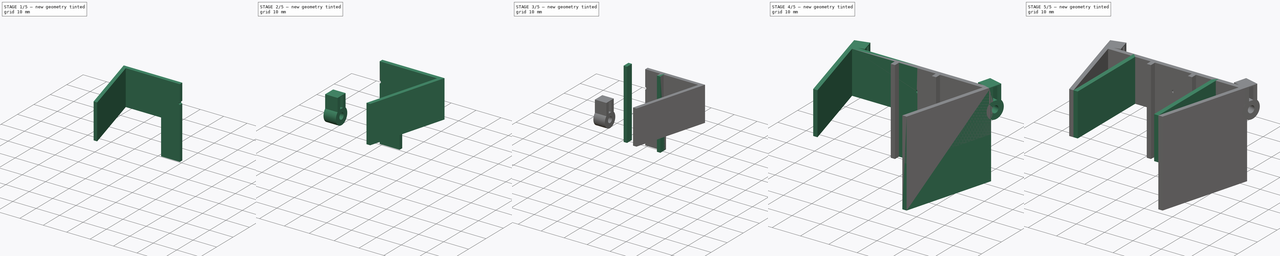
[diagram: build sequence overview — one tinted view per stage of 5, left to right]
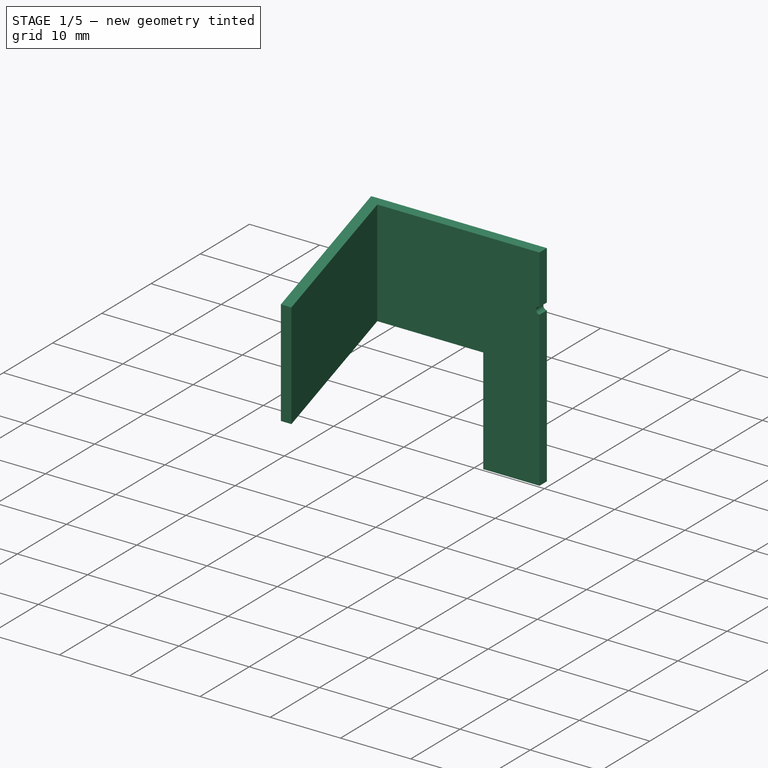
[diagram: stage 1 of 5 — iso view after this stage's code; geometry added in this stage tinted green]
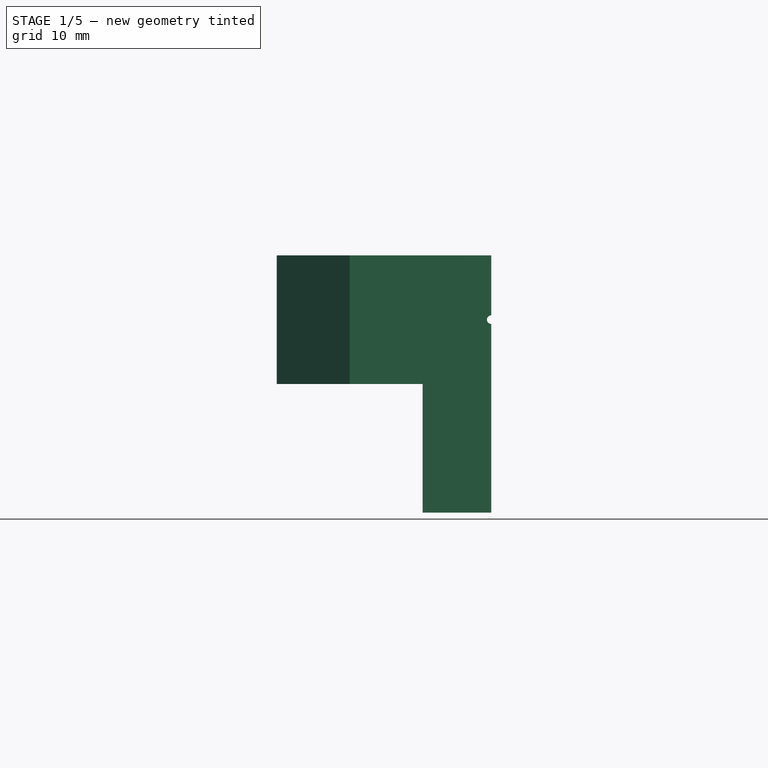
[diagram: stage 1 of 5 — front view after this stage's code; geometry added in this stage tinted green]
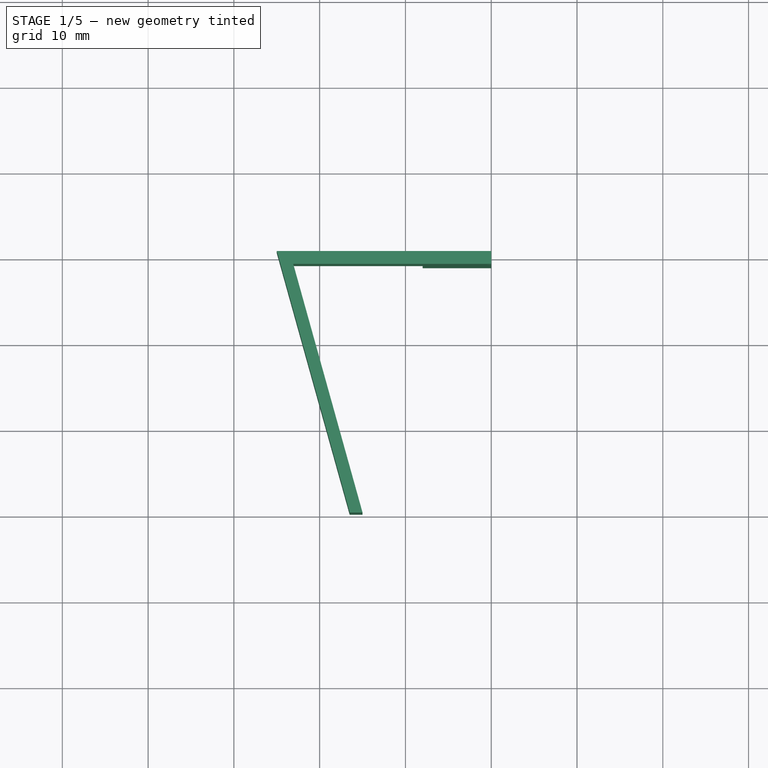
[diagram: stage 1 of 5 — top view after this stage's code; geometry added in this stage tinted green]
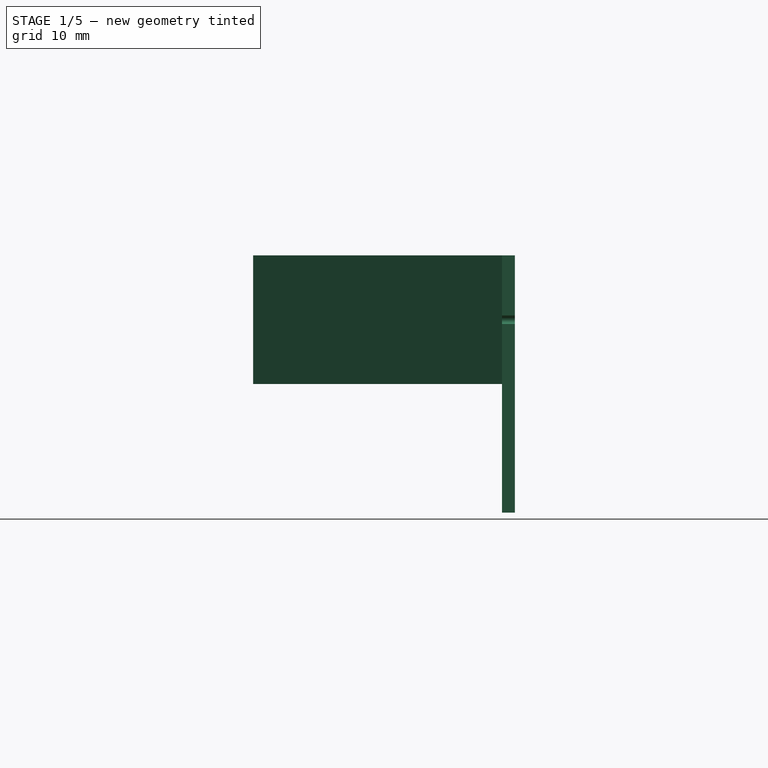
[diagram: stage 1 of 5 — right view after this stage's code; geometry added in this stage tinted green]
FCSTD DOCUMENT  (FreeCAD 0.19R24291 (Git))
Label: pedal
License: All rights reserved
LicenseURL: http://en.wikipedia.org/wiki/All_rights_reserved
objects: Sketcher::SketchObject×6, Part::Extrusion×6, PartDesign::FeatureBase×4, PartDesign::Body×4, Part::Cut×2, Part::Mirroring×2, Spreadsheet::Sheet×1, Part::Compound×1
note: 25 computed .brp shape members not serialized (recipe doc carries the construction recipe); baked Part::Feature solids carry a one-line shape summary decoded from their .brp

FEATURE [Sketcher::SketchObject] Sketch003
  FullyConstrained = true
  sketch-geometry (6):
    g0: LineSegment StartX=-15 StartY=0 StartZ=0 EndX=-23.082 EndY=29 EndZ=0
    g1: LineSegment StartX=-23.082 StartY=29 StartZ=0 EndX=0 EndY=29 EndZ=0
    g2: LineSegment StartX=0 StartY=29 StartZ=0 EndX=0 EndY=30.5 EndZ=0
    g3: LineSegment StartX=0 StartY=30.5 StartZ=0 EndX=-25 EndY=30.5 EndZ=0
    g4: LineSegment StartX=-25 StartY=30.5 StartZ=0 EndX=-16.5 EndY=0 EndZ=0
    g5: LineSegment StartX=-16.5 StartY=0 StartZ=0 EndX=-15 EndY=0 EndZ=0
  constraints (18):
    c: PointOnObject(g0,g-1)
    c: Coincident(g1,g0)
    c: Horizontal(g1)
    c: Coincident(g2,g1)
    c: PointOnObject(g2,g-2)
    c: Vertical(g2)
    c: Coincident(g3,g2)
    c: Horizontal(g3)
    c: Coincident(g4,g3)
    c: Coincident(g5,g4)
    c: Coincident(g5,g0)
    c: Horizontal(g5)
    c: DistanceY(g1) = 29
    c: DistanceY(g2,g2) = 1.5
    c: DistanceX(g5,g5) = 1.5
    c: DistanceX(g0) = -15
    c: Parallel(g0,g4)
    c: DistanceX(g3) = -25
FEATURE [Part::Extrusion] Extrude003
  Base = -> Sketch003
  Dir = (0,0,1)
  DirMode = 2
  FaceMakerClass = Part::FaceMakerBullseye
  LengthFwd = 15
  LengthRev = 15
  Solid = true
  Symmetric = false
FEATURE [PartDesign::Body] Body002
  Group = -> [Clone002]
  Origin = -> Origin002
  Placement = pos=(25.4,32,0) rot=(0,0,1;2.87979rad)
  Tip = -> Clone002
FEATURE [Sketcher::SketchObject] Sketch005
  FullyConstrained = false
  Placement = pos=(0,31,0) rot=(0,0.707107,0.707107;3.14159rad)
  sketch-geometry (5):
    g0: LineSegment StartX=26 StartY=0 StartZ=0 EndX=8 EndY=0 EndZ=0
    g1: LineSegment StartX=8 StartY=0 StartZ=0 EndX=8 EndY=-16 EndZ=0
    g2: LineSegment StartX=8 StartY=-16 StartZ=0 EndX=26 EndY=-16 EndZ=0
    g3: LineSegment StartX=26 StartY=-16 StartZ=0 EndX=26 EndY=0 EndZ=0
    g4: Circle CenterX=0 CenterY=7.5 CenterZ=0 NormalX=0 NormalY=0 NormalZ=1 AngleXU=0 Radius=0.5
  constraints (14):
    c: Coincident(g0,g1)
    c: Coincident(g1,g2)
    c: Coincident(g2,g3)
    c: Coincident(g3,g0)
    c: Horizontal(g0)
    c: Horizontal(g2)
    c: Vertical(g1)
    c: Vertical(g3)
    c: PointOnObject(g0,g-1)
    c: DistanceY(g1) = -16
    c: DistanceX(g0) = 8
    c: PointOnObject(g4,g-2)
    c: DistanceY(g4) = 7.5
    c: Radius(g4) = 0.5
FEATURE [Part::Extrusion] Extrude005
  Base = -> Sketch005
  Dir = (0,1,-2e-16)
  DirMode = 2
  FaceMakerClass = Part::FaceMakerBullseye
  LengthFwd = 0
  LengthRev = 32
  Solid = true
  Symmetric = false
FEATURE [Part::Cut] Cut001
  Base = -> Extrude003
  Tool = -> Extrude005
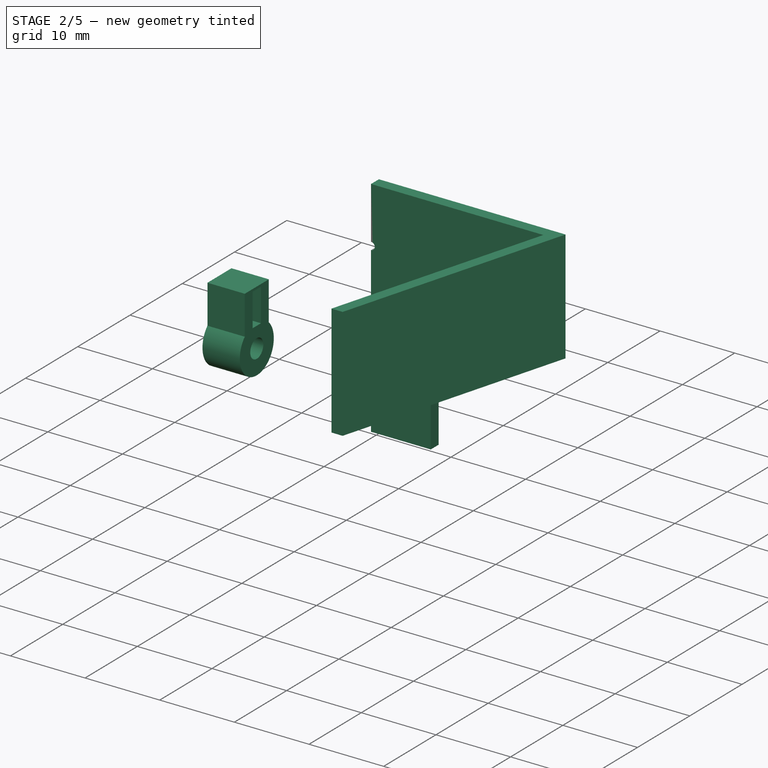
[diagram: stage 2 of 5 — iso view after this stage's code; geometry added in this stage tinted green]
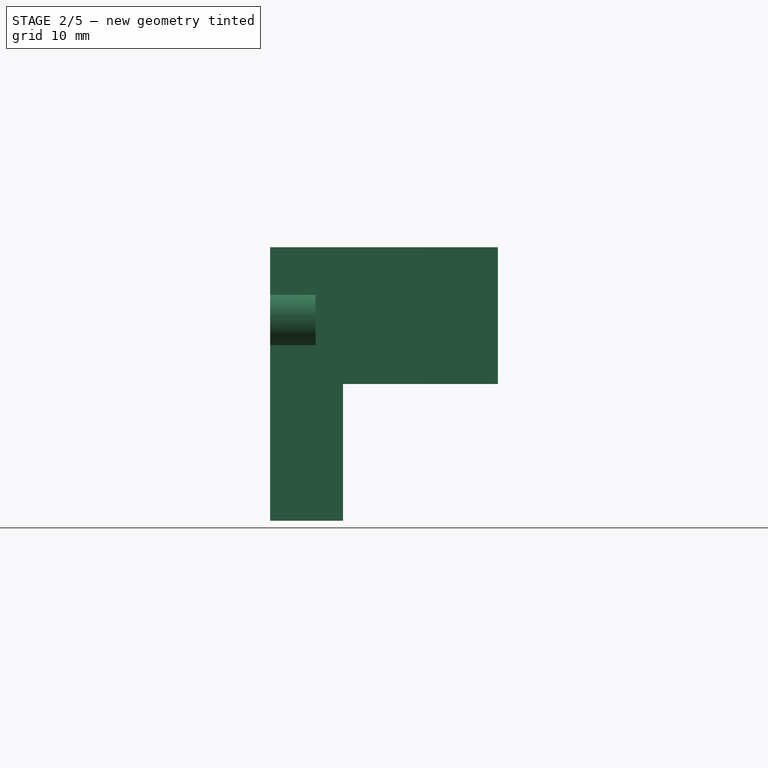
[diagram: stage 2 of 5 — front view after this stage's code; geometry added in this stage tinted green]
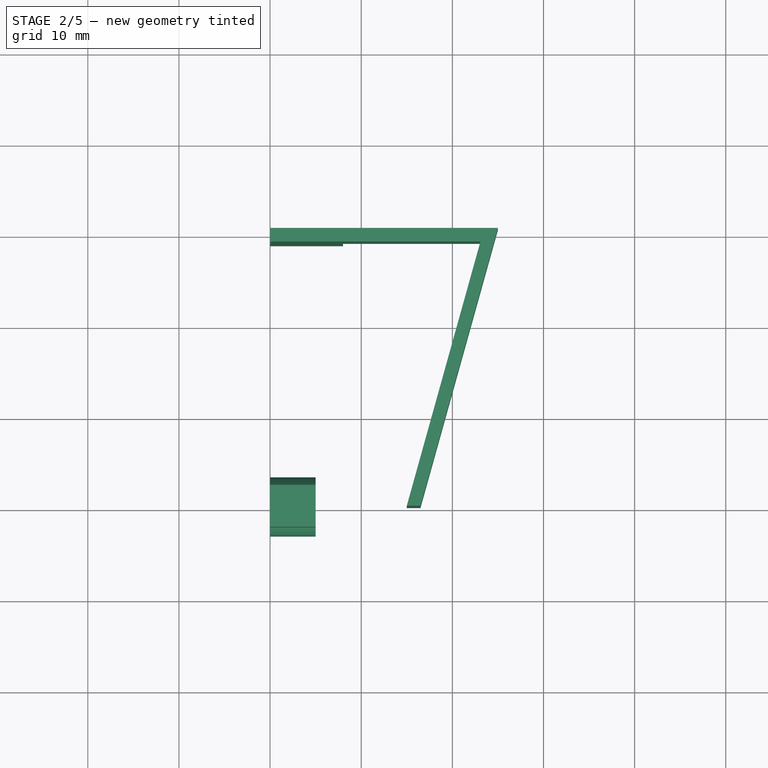
[diagram: stage 2 of 5 — top view after this stage's code; geometry added in this stage tinted green]
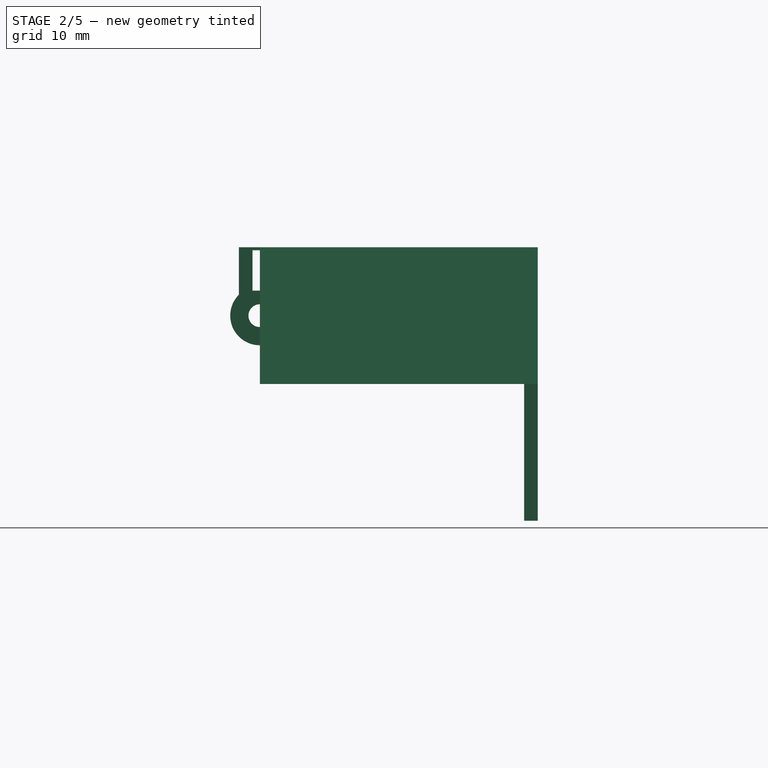
[diagram: stage 2 of 5 — right view after this stage's code; geometry added in this stage tinted green]
FEATURE [Spreadsheet::Sheet] Spreadsheet
  cells = A1=m2.6_r1; B1(m2_6_r1)=1.25; A2=m2.6_r2; B2(m2_6_r2)=1.5; A3=m2.6_r3; B3(m2_6_r3)=2.6
FEATURE [Sketcher::SketchObject] Sketch004
  FullyConstrained = true
  Placement = pos=(0,0,0) rot=(0.57735,0.57735,0.57735;2.0944rad)
  expr: Constraints[18] = Spreadsheet.m2_6_r1 + 1.5
  expr: Constraints[7] = Spreadsheet.m2_6_r1 + 2
  expr: Constraints[6] = Spreadsheet.m2_6_r1
  sketch-geometry (9):
    g0: Circle CenterX=0 CenterY=0 CenterZ=0 NormalX=0 NormalY=0 NormalZ=1 AngleXU=0 Radius=1.25
    g1: ArcOfCircle CenterX=0 CenterY=0 CenterZ=0 NormalX=0 NormalY=0 NormalZ=1 AngleXU=0 Radius=3.25 StartAngle=5.49779 EndAngle=10.2102
    g2: LineSegment StartX=-2.2981 StartY=-2.2981 StartZ=0 EndX=-2.2981 EndY=-7.5 EndZ=0
    g3: LineSegment StartX=2.2981 StartY=-7.5 StartZ=0 EndX=2.2981 EndY=-2.2981 EndZ=0
    g4: LineSegment StartX=2.2981 StartY=-7.5 StartZ=0 EndX=-2.2981 EndY=-7.5 EndZ=0
    g5: LineSegment StartX=0.798097 StartY=-7.18 StartZ=0 EndX=0.798097 EndY=-2.75 EndZ=0
    g6: LineSegment StartX=0.798097 StartY=-2.75 StartZ=0 EndX=-0.798097 EndY=-2.75 EndZ=0
    g7: LineSegment StartX=-0.798097 StartY=-2.75 StartZ=0 EndX=-0.798097 EndY=-7.18 EndZ=0
    g8: LineSegment StartX=0.798097 StartY=-7.18 StartZ=0 EndX=-0.798097 EndY=-7.18 EndZ=0
  constraints (27):
    c: Coincident(g0,g-1)
    c: Coincident(g1,g0)
    c: Coincident(g2,g1)
    c: Vertical(g2)
    c: PointOnObject(g3,g1)
    c: Vertical(g3)
    c: Radius(g0) = 1.25
    c: Radius(g1) = 3.25
    c: PointOnObject(g1,g3)
    c: Angle(g1,g3,g1) = 0.785398
    c: Horizontal(g1,g1)
    c: Coincident(g3,g4)
    c: Horizontal(g4)
    c: Vertical(g5)
    c: Coincident(g5,g6)
    c: Horizontal(g6)
    c: Vertical(g7)
    c: Coincident(g7,g6)
    c: DistanceY(g5,g0) = 2.75
    c: DistanceX(g2,g7) = 1.5
    c: DistanceY(g4) = -7.5
    c: Coincident(g2,g4)
    c: Coincident(g8,g5)
    c: Horizontal(g8)
    c: Coincident(g8,g7)
    c: DistanceY(g3,g5) = 0.32
    c: DistanceX(g5,g3) = 1.5
FEATURE [Part::Extrusion] Extrude004
  Base = -> Sketch004
  Dir = (1,0,0)
  DirMode = 2
  FaceMakerClass = Part::FaceMakerBullseye
  LengthFwd = 5
  LengthRev = 0
  Placement = pos=(0,0,7.5) rot=(1,0,0;3.14159rad)
  Solid = true
  Symmetric = false
FEATURE [PartDesign::FeatureBase] Clone003
  BaseFeature = -> Cut001
FEATURE [PartDesign::Body] Body003
  Group = -> [Clone003]
  Origin = -> Origin003
  Tip = -> Clone003
FEATURE [Part::Mirroring] Part__Mirroring001  label="Body003 (Mirror #2)"
  Base = (0,0,0)
  Normal = (1,0,0)
  Source = -> Body003
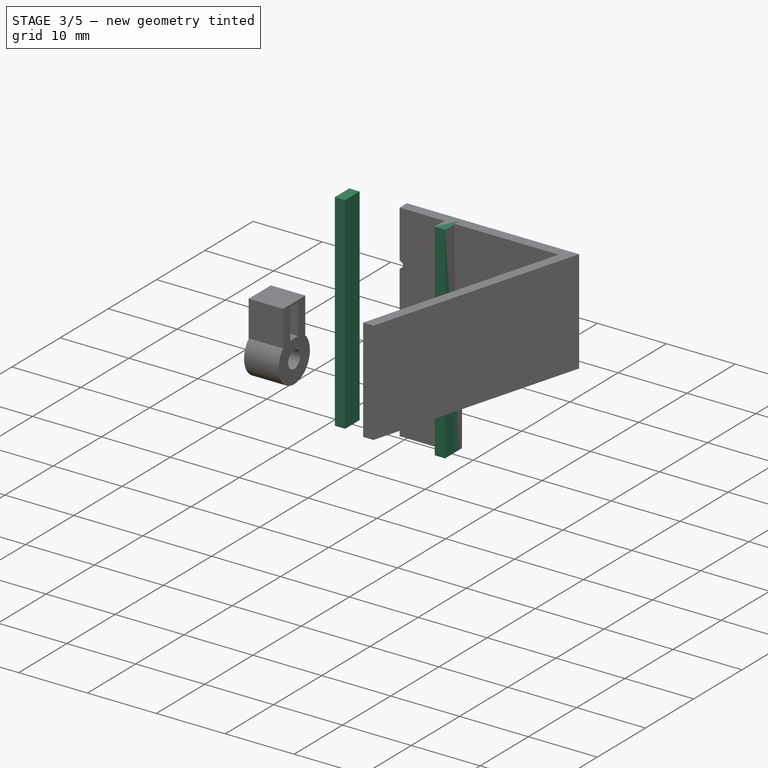
[diagram: stage 3 of 5 — iso view after this stage's code; geometry added in this stage tinted green]
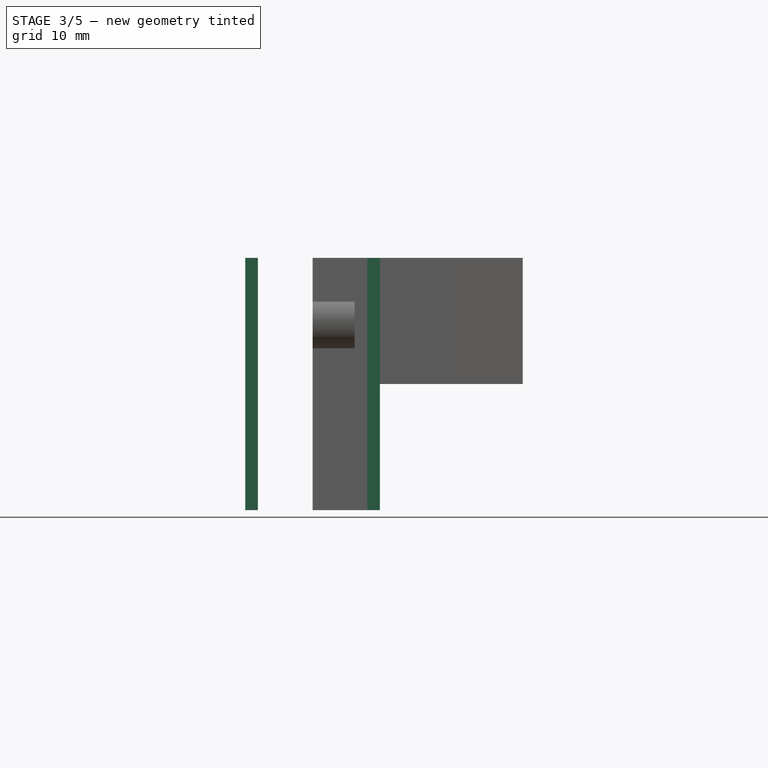
[diagram: stage 3 of 5 — front view after this stage's code; geometry added in this stage tinted green]
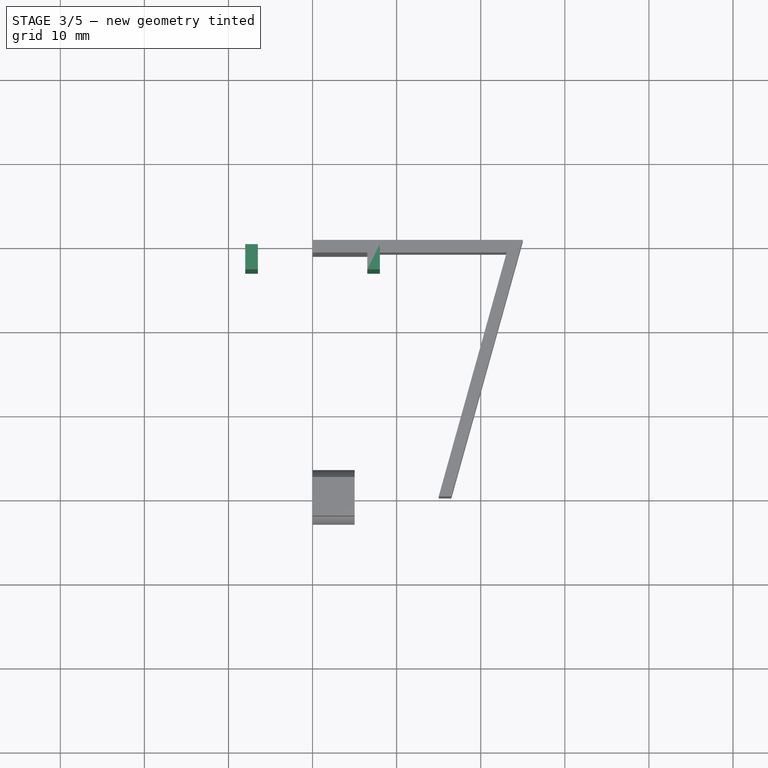
[diagram: stage 3 of 5 — top view after this stage's code; geometry added in this stage tinted green]
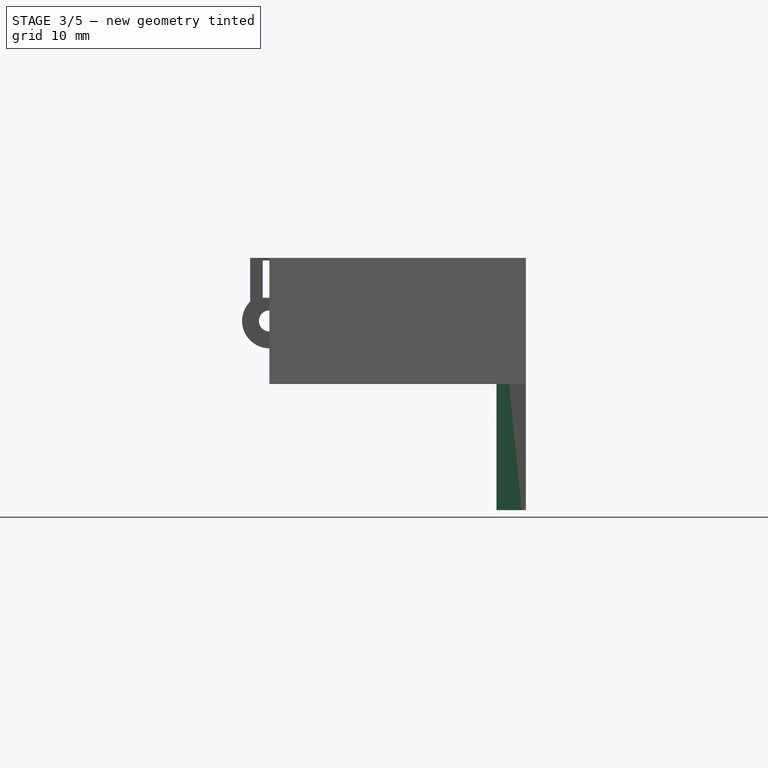
[diagram: stage 3 of 5 — right view after this stage's code; geometry added in this stage tinted green]
FEATURE [Sketcher::SketchObject] Sketch002
  FullyConstrained = false
  Placement = pos=(0,30,0) rot=(-1,0,0;4.71239rad)
  sketch-geometry (8):
    g0: LineSegment StartX=8 StartY=-15 StartZ=0 EndX=6.5 EndY=-15 EndZ=0
    g1: LineSegment StartX=6.5 StartY=-15 StartZ=0 EndX=6.5 EndY=15 EndZ=0
    g2: LineSegment StartX=6.5 StartY=15 StartZ=0 EndX=8 EndY=15 EndZ=0
    g3: LineSegment StartX=8 StartY=15 StartZ=0 EndX=8 EndY=-15 EndZ=0
    g4: LineSegment StartX=-8.01 StartY=-15 StartZ=0 EndX=-6.51 EndY=-15 EndZ=0
    g5: LineSegment StartX=-6.51 StartY=-15 StartZ=0 EndX=-6.51 EndY=15 EndZ=0
    g6: LineSegment StartX=-6.51 StartY=15 StartZ=0 EndX=-8.01 EndY=15 EndZ=0
    g7: LineSegment StartX=-8.01 StartY=15 StartZ=0 EndX=-8.01 EndY=-15 EndZ=0
  constraints (22):
    c: Coincident(g0,g1)
    c: Coincident(g1,g2)
    c: Coincident(g2,g3)
    c: Coincident(g3,g0)
    c: Horizontal(g0)
    c: Horizontal(g2)
    c: Vertical(g1)
    c: Vertical(g3)
    c: Coincident(g4,g5)
    c: Coincident(g5,g6)
    c: Coincident(g6,g7)
    c: Coincident(g7,g4)
    c: Horizontal(g4)
    c: Horizontal(g6)
    c: Vertical(g5)
    c: Vertical(g7)
    c: DistanceX(g2,g2) = 1.5
    c: DistanceX(g6,g6) = 1.5
    c: DistanceX(g0) = 8
    c: DistanceX(g4) = -8.01
    c: Horizontal(g1,g5)
    c: Horizontal(g0,g4)
FEATURE [Part::Extrusion] Extrude002
  Base = -> Sketch002
  Dir = (0,-1,-2e-16)
  DirMode = 2
  FaceMakerClass = Part::FaceMakerBullseye
  LengthFwd = 3
  LengthRev = 0
  Solid = true
  Symmetric = false
FEATURE [PartDesign::FeatureBase] Clone001
  BaseFeature = -> Extrude004
  Placement = pos=(0,0,7.5) rot=(1,0,0;3.14159rad)
FEATURE [PartDesign::Body] Body001
  Group = -> [Clone001]
  Origin = -> Origin001
  Placement = pos=(-25.4,32,0) rot=(0,0,1;0.261799rad)
  Tip = -> Clone001
FEATURE [PartDesign::FeatureBase] Clone002
  BaseFeature = -> Extrude004
  Placement = pos=(0,0,7.5) rot=(1,0,0;3.14159rad)
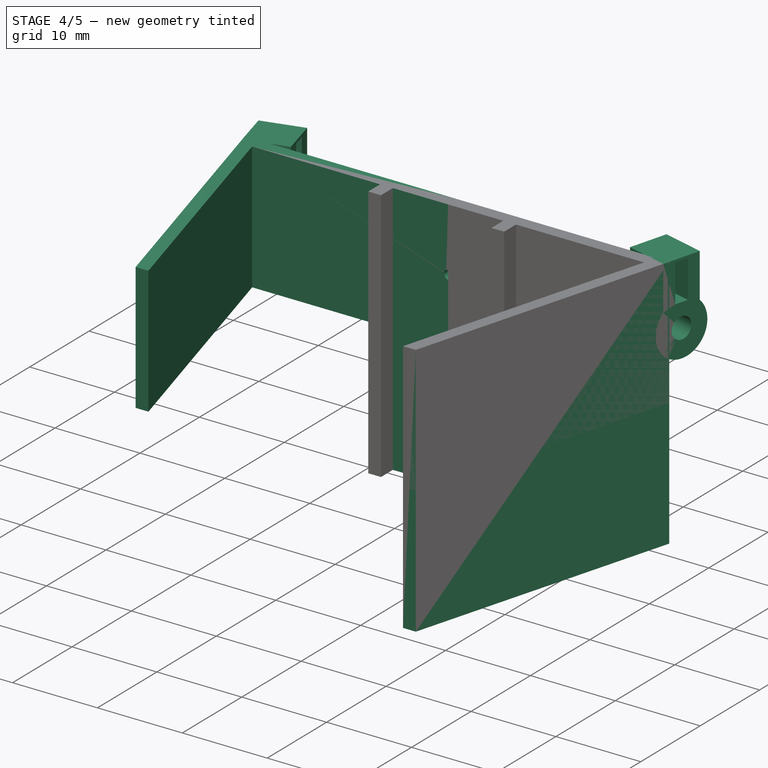
[diagram: stage 4 of 5 — iso view after this stage's code; geometry added in this stage tinted green]
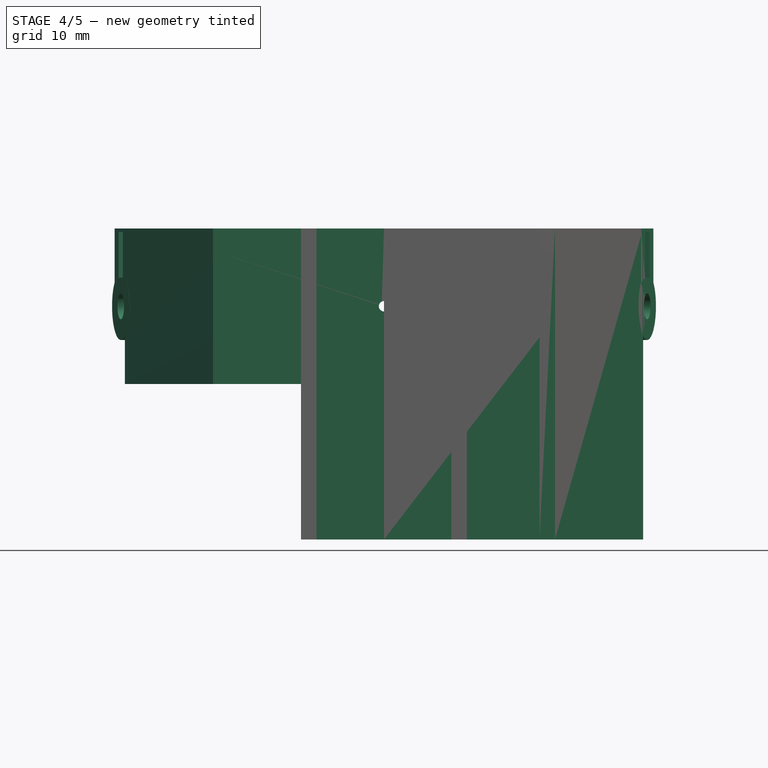
[diagram: stage 4 of 5 — front view after this stage's code; geometry added in this stage tinted green]
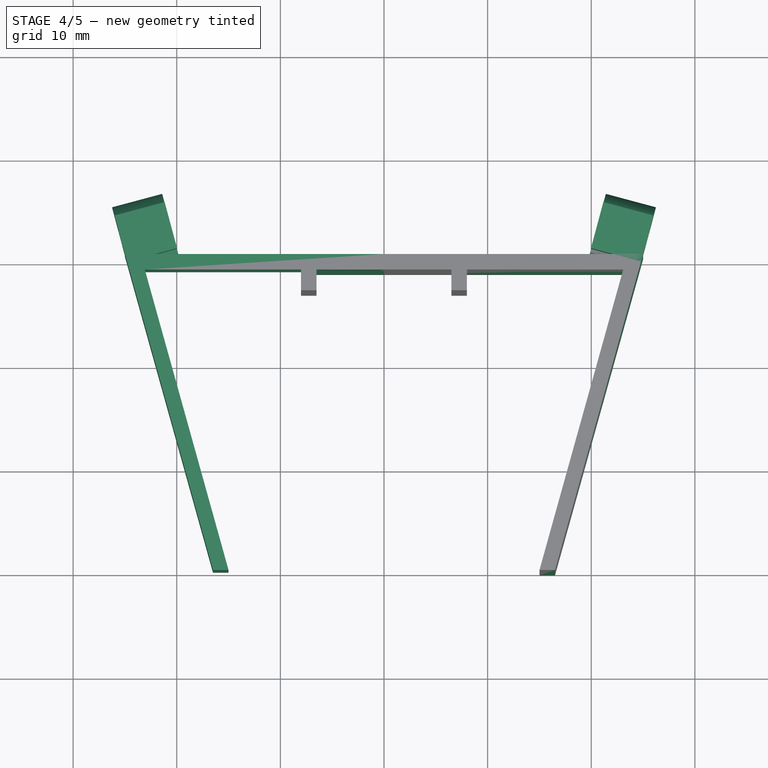
[diagram: stage 4 of 5 — top view after this stage's code; geometry added in this stage tinted green]
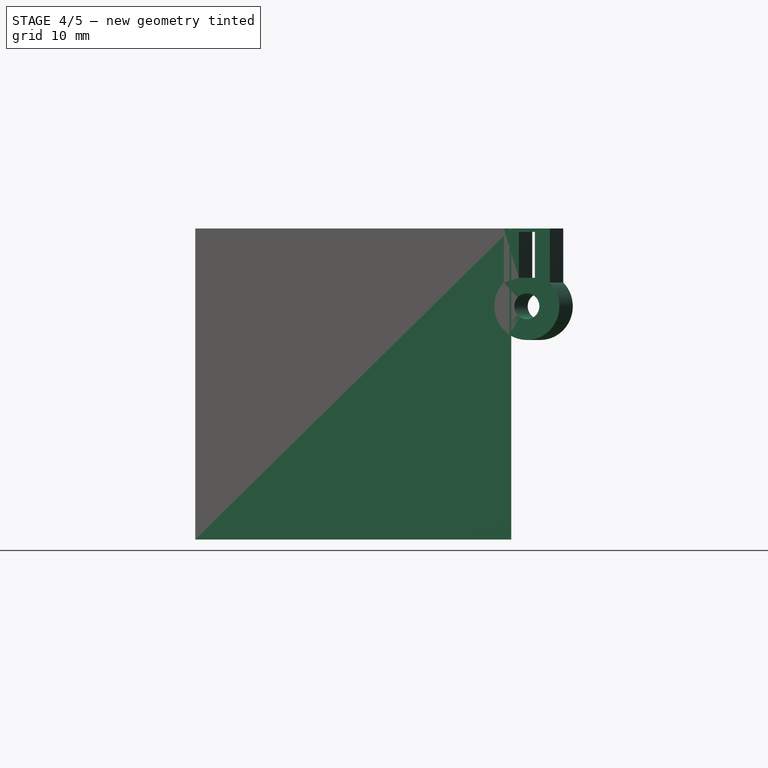
[diagram: stage 4 of 5 — right view after this stage's code; geometry added in this stage tinted green]
FEATURE [PartDesign::FeatureBase] Clone
  BaseFeature = -> Extrude003
FEATURE [PartDesign::Body] Body
  Group = -> [Clone]
  Origin = -> Origin
  Tip = -> Clone
FEATURE [Part::Mirroring] Part__Mirroring  label="Body (Mirror #1)"
  Base = (0,0,0)
  Normal = (1,0,0)
  Source = -> Body
FEATURE [Part::Compound] Compound
  Links = -> [Part__Mirroring001,Cut001,Body002,Body001,Extrude002]
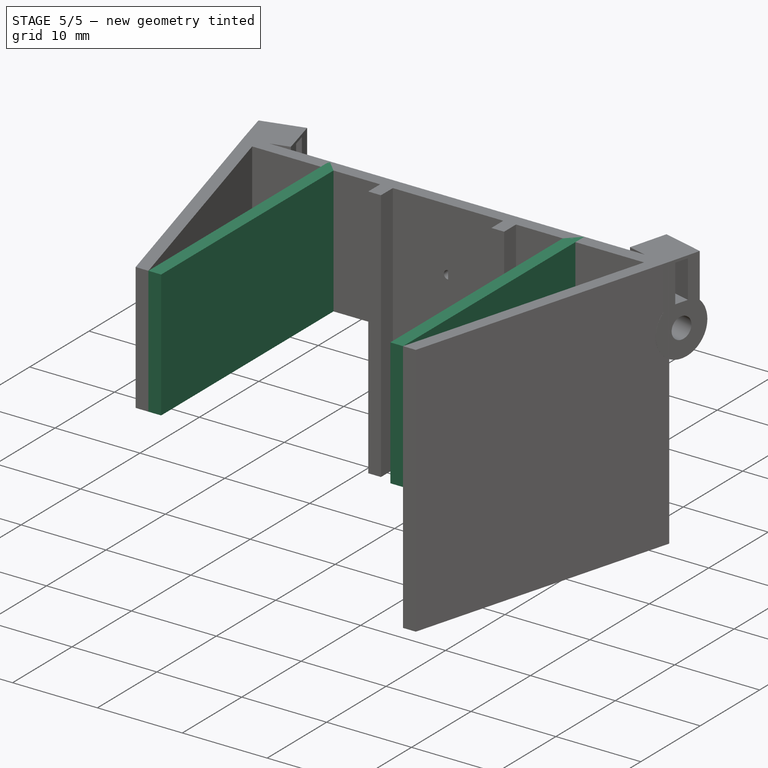
[diagram: stage 5 of 5 — iso view after this stage's code; geometry added in this stage tinted green]
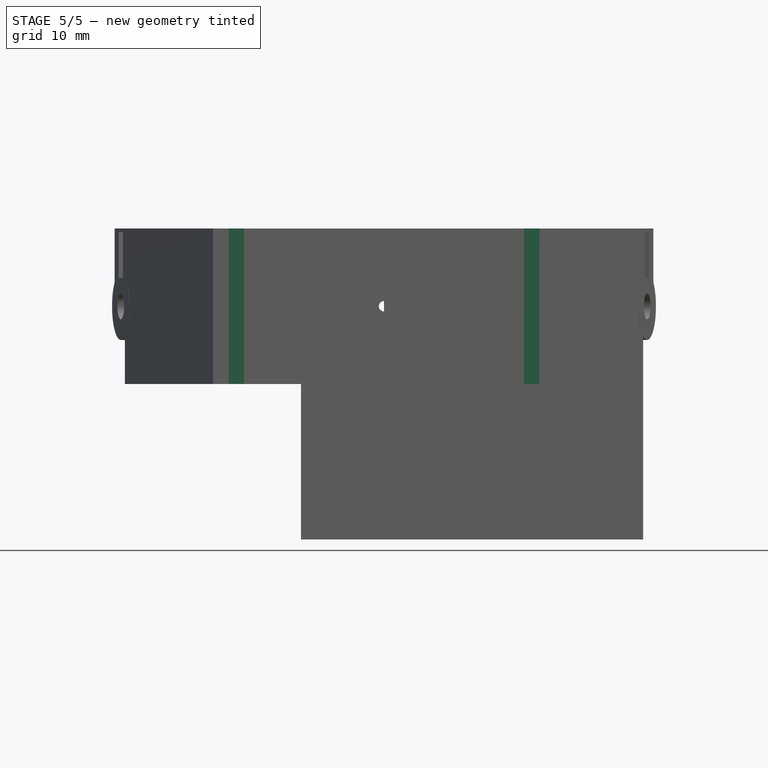
[diagram: stage 5 of 5 — front view after this stage's code; geometry added in this stage tinted green]
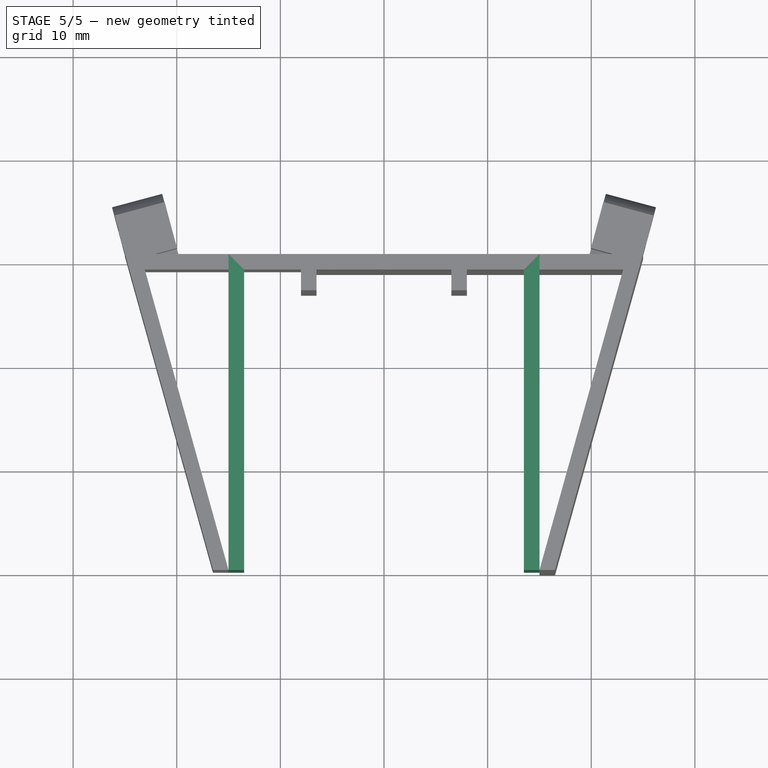
[diagram: stage 5 of 5 — top view after this stage's code; geometry added in this stage tinted green]
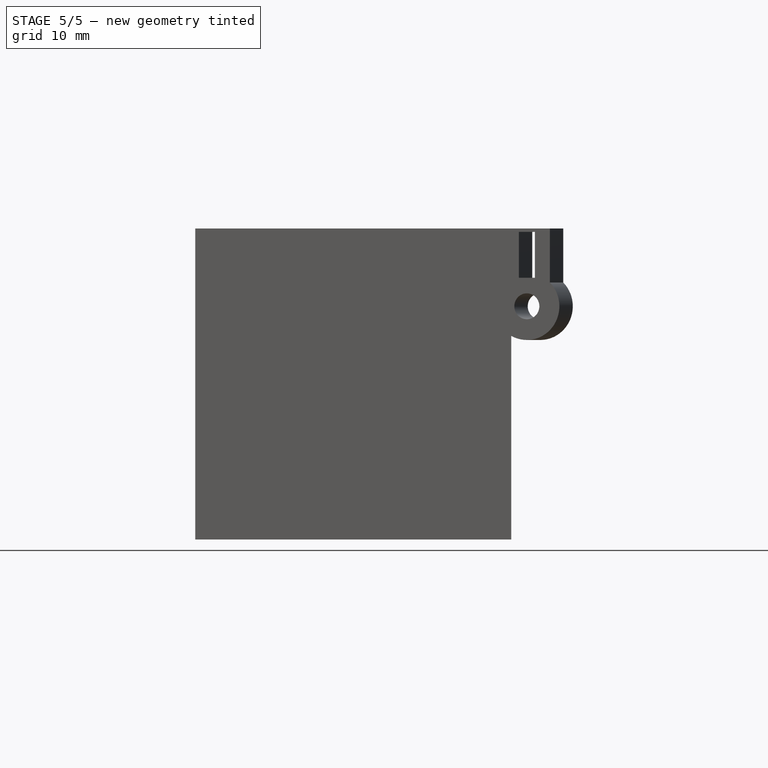
[diagram: stage 5 of 5 — right view after this stage's code; geometry added in this stage tinted green]
FEATURE [Sketcher::SketchObject] Sketch
  FullyConstrained = true
  sketch-geometry (8):
    g0: LineSegment StartX=-13.5 StartY=0 StartZ=0 EndX=-13.5 EndY=29 EndZ=0
    g1: LineSegment StartX=-13.5 StartY=29 StartZ=0 EndX=13.5 EndY=29 EndZ=0
    g2: LineSegment StartX=13.5 StartY=29 StartZ=0 EndX=13.5 EndY=0 EndZ=0
    g3: LineSegment StartX=13.5 StartY=0 StartZ=0 EndX=15 EndY=0 EndZ=0
    g4: LineSegment StartX=15 StartY=0 StartZ=0 EndX=15 EndY=30.5 EndZ=0
    g5: LineSegment StartX=15 StartY=30.5 StartZ=0 EndX=-15 EndY=30.5 EndZ=0
    g6: LineSegment StartX=-15 StartY=30.5 StartZ=0 EndX=-15 EndY=0 EndZ=0
    g7: LineSegment StartX=-15 StartY=0 StartZ=0 EndX=-13.5 EndY=0 EndZ=0
  constraints (24):
    c: Vertical(g0)
    c: Coincident(g0,g1)
    c: Horizontal(g1)
    c: Coincident(g1,g2)
    c: Vertical(g2)
    c: Coincident(g2,g3)
    c: PointOnObject(g3,g-1)
    c: Coincident(g3,g4)
    c: Vertical(g4)
    c: Coincident(g4,g5)
    c: Horizontal(g5)
    c: Coincident(g5,g6)
    c: PointOnObject(g6,g-1)
    c: Vertical(g6)
    c: Coincident(g6,g7)
    c: Coincident(g7,g0)
    c: Horizontal(g7)
    c: Horizontal(g3)
    c: DistanceX(g3,g3) = 1.5
    c: DistanceX(g7,g7) = 1.5
    c: DistanceY(g0,g5) = 1.5
    c: DistanceX(g5,g5) = 30
    c: DistanceX(g4) = 15
    c: DistanceY(g1) = 29
FEATURE [Part::Extrusion] Extrude
  Base = -> Sketch
  Dir = (0,0,1)
  DirMode = 2
  FaceMakerClass = Part::FaceMakerBullseye
  LengthFwd = 15
  LengthRev = 15
  Solid = true
  Symmetric = false
FEATURE [Sketcher::SketchObject] Sketch001
  FullyConstrained = false
  Placement = pos=(0,31,0) rot=(0,0.707107,0.707107;3.14159rad)
  sketch-geometry (9):
    g0: LineSegment StartX=-26 StartY=0 StartZ=0 EndX=-8 EndY=0 EndZ=0
    g1: LineSegment StartX=-8 StartY=0 StartZ=0 EndX=-8 EndY=-16 EndZ=0
    g2: LineSegment StartX=-8 StartY=-16 StartZ=0 EndX=-26 EndY=-16 EndZ=0
    g3: LineSegment StartX=-26 StartY=-16 StartZ=0 EndX=-26 EndY=0 EndZ=0
    g4: LineSegment StartX=26 StartY=0 StartZ=0 EndX=8 EndY=0 EndZ=0
    g5: LineSegment StartX=8 StartY=0 StartZ=0 EndX=8 EndY=-16 EndZ=0
    g6: LineSegment StartX=8 StartY=-16 StartZ=0 EndX=26 EndY=-16 EndZ=0
    g7: LineSegment StartX=26 StartY=-16 StartZ=0 EndX=26 EndY=0 EndZ=0
    g8: Circle CenterX=0 CenterY=7.5 CenterZ=0 NormalX=0 NormalY=0 NormalZ=1 AngleXU=0 Radius=0.5
  constraints (25):
    c: Coincident(g0,g1)
    c: Coincident(g1,g2)
    c: Coincident(g2,g3)
    c: Coincident(g3,g0)
    c: Horizontal(g0)
    c: Horizontal(g2)
    c: Vertical(g1)
    c: Vertical(g3)
    c: PointOnObject(g0,g-1)
    c: Coincident(g4,g5)
    c: Coincident(g5,g6)
    c: Coincident(g6,g7)
    c: Coincident(g7,g4)
    c: Horizontal(g4)
    c: Horizontal(g6)
    c: Vertical(g5)
    c: Vertical(g7)
    c: PointOnObject(g4,g-1)
    c: DistanceY(g5) = -16
    c: Horizontal(g1,g5)
    c: DistanceX(g4) = 8
    c: DistanceX(g0) = -8
    c: PointOnObject(g8,g-2)
    c: DistanceY(g8) = 7.5
    c: Radius(g8) = 0.5
FEATURE [Part::Extrusion] Extrude001
  Base = -> Sketch001
  Dir = (1e-16,1,0)
  DirMode = 2
  FaceMakerClass = Part::FaceMakerBullseye
  LengthFwd = 0
  LengthRev = 32
  Solid = true
  Symmetric = false
FEATURE [Part::Cut] Cut
  Base = -> Extrude
  Tool = -> Extrude001
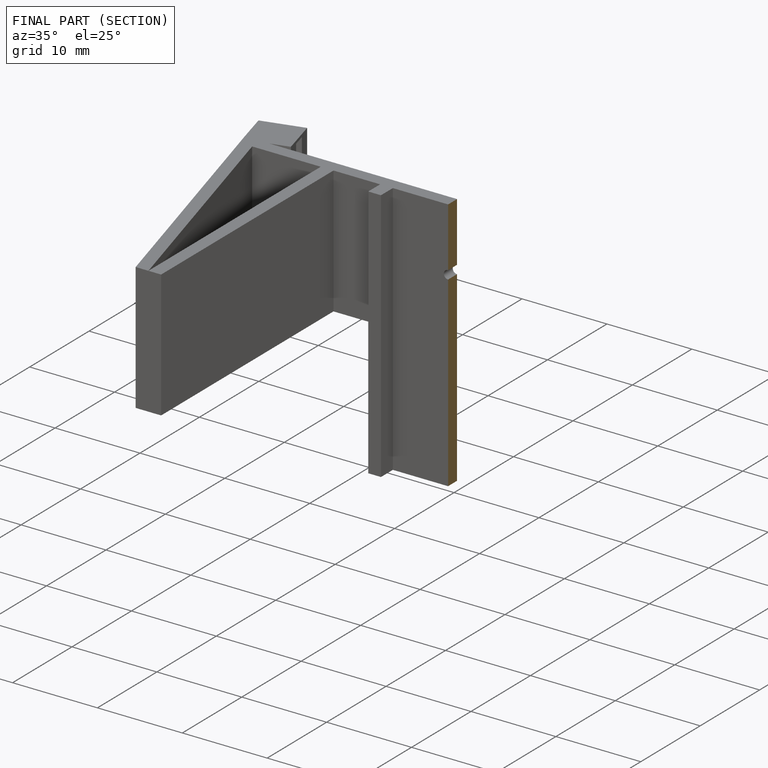
[diagram: finished part — half-section view (interior)]
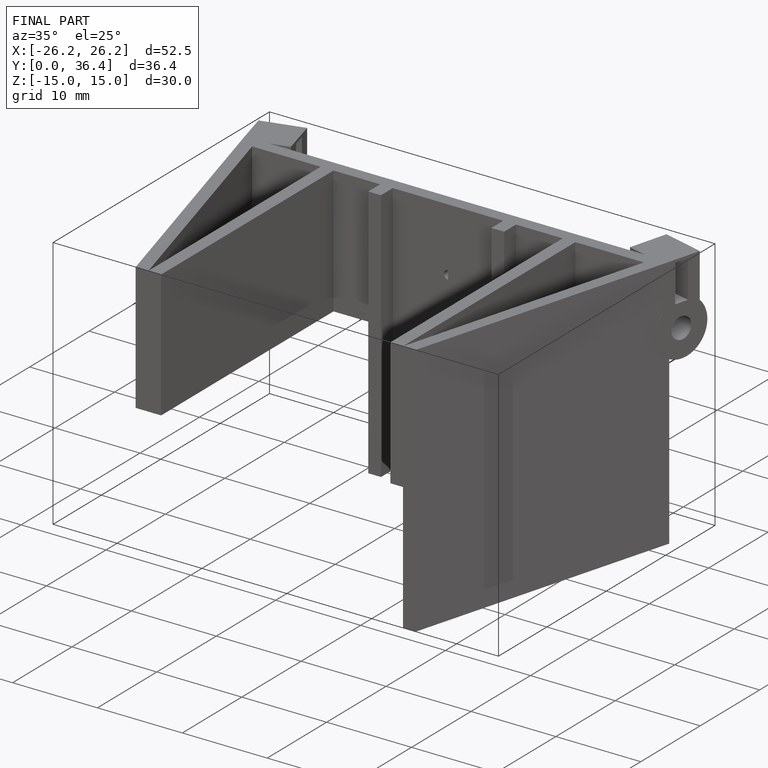
[diagram: finished part — iso view with bounding-box wireframe]
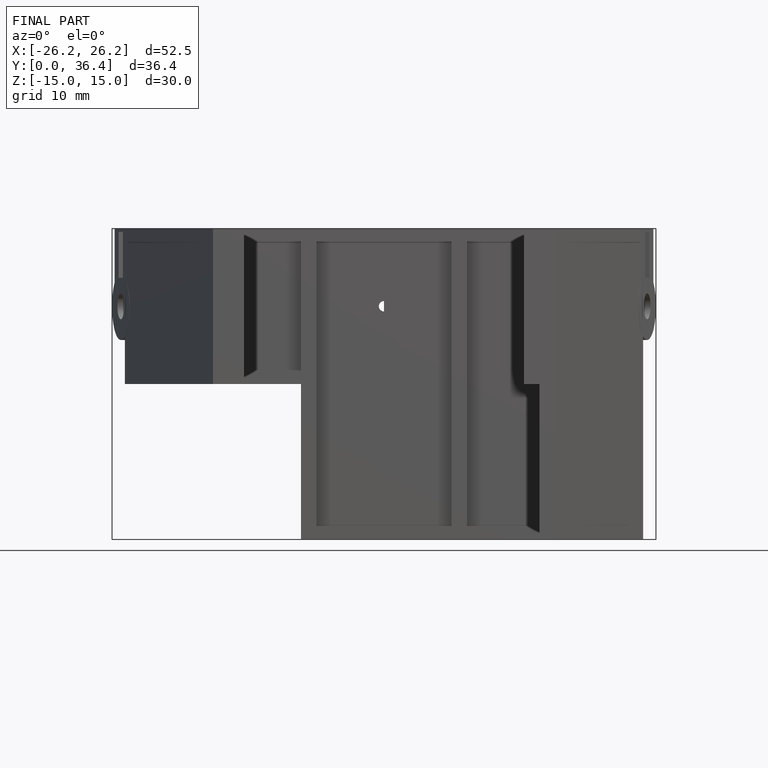
[diagram: finished part — front view with bounding-box wireframe]
